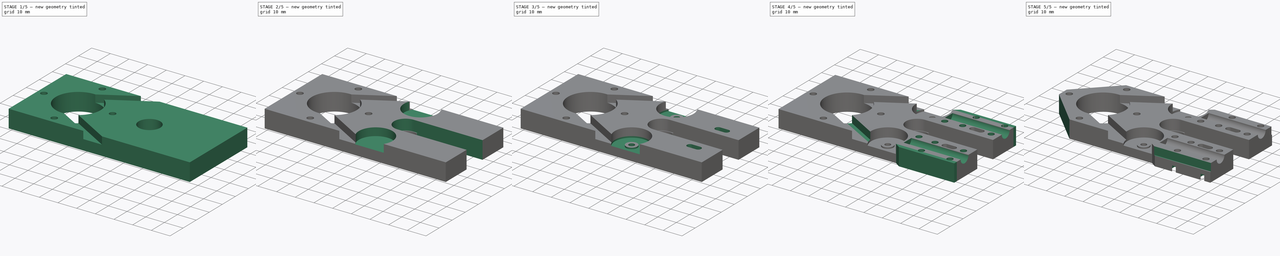
[diagram: build sequence overview — one tinted view per stage of 5, left to right]
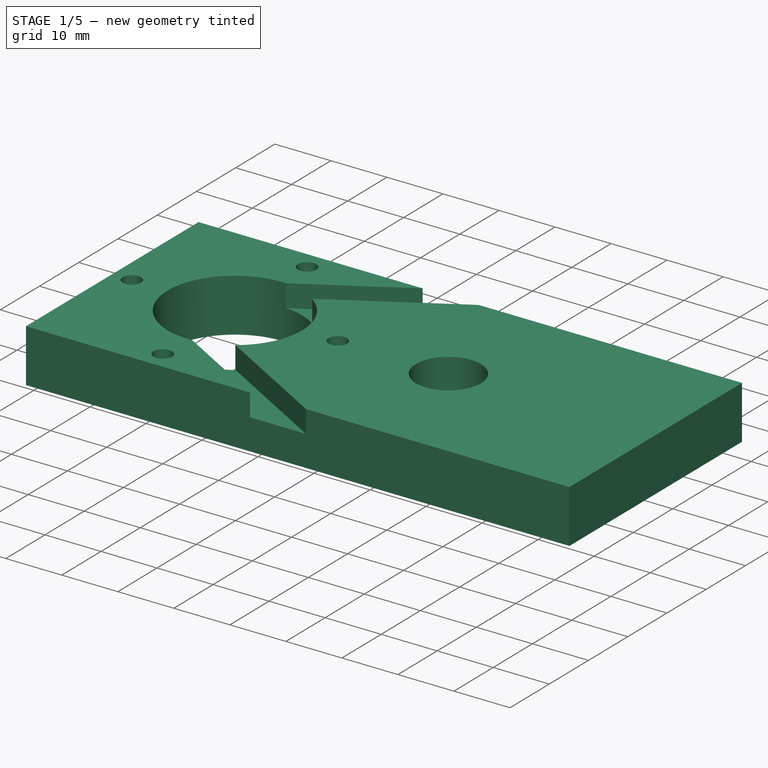
[diagram: stage 1 of 5 — iso view after this stage's code; geometry added in this stage tinted green]
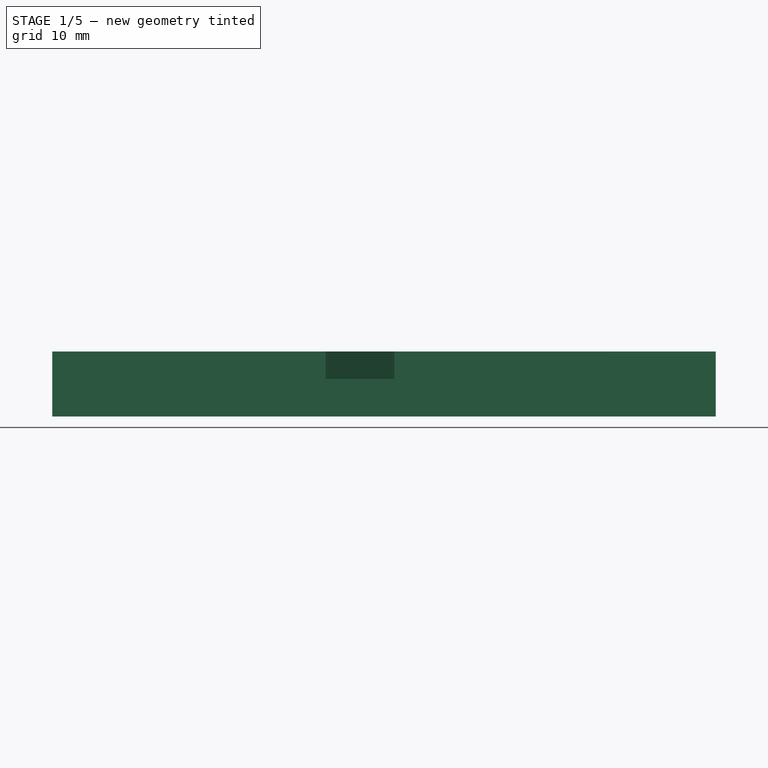
[diagram: stage 1 of 5 — front view after this stage's code; geometry added in this stage tinted green]
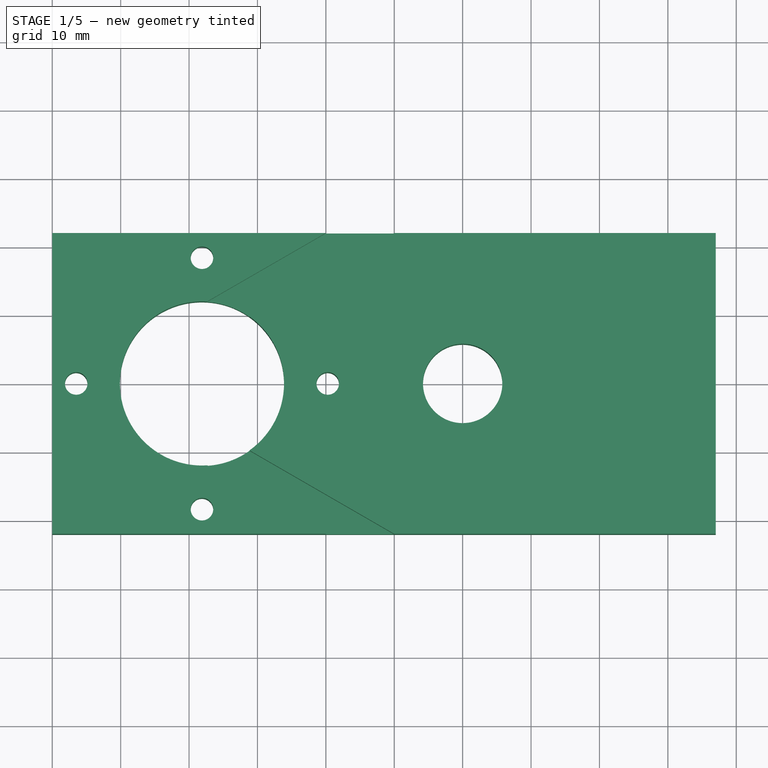
[diagram: stage 1 of 5 — top view after this stage's code; geometry added in this stage tinted green]
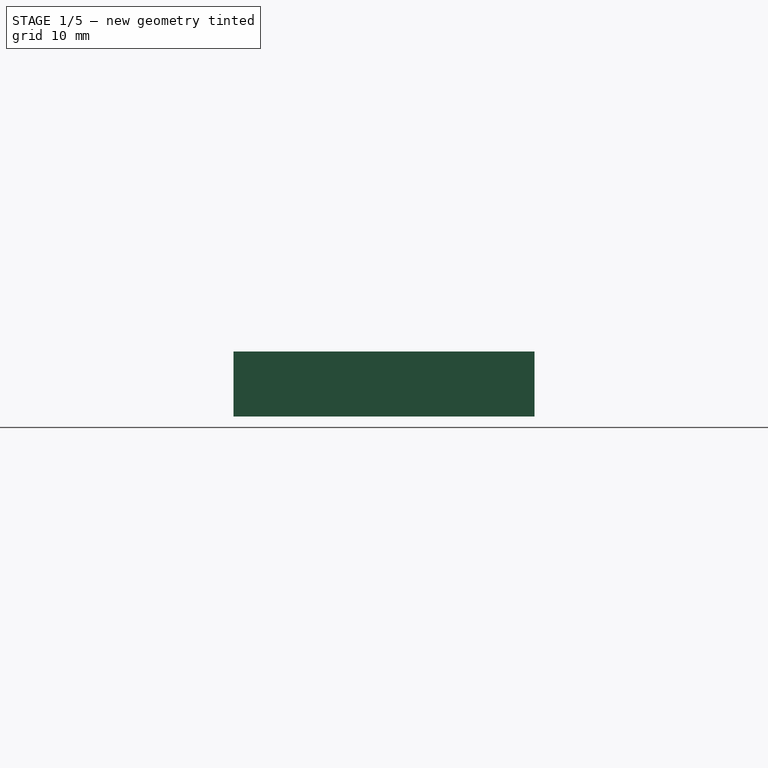
[diagram: stage 1 of 5 — right view after this stage's code; geometry added in this stage tinted green]
FCSTD DOCUMENT  (FreeCAD 0.18R15441 (Git))
Label: LeftXEndHalf_Bottom
License: All rights reserved
LicenseURL: http://en.wikipedia.org/wiki/All_rights_reserved
objects: Sketcher::SketchObject×18, PartDesign::Pocket×16, PartDesign::Plane×3, PartDesign::Pad×2, PartDesign::Chamfer×1, PartDesign::Body×1, App::Part×1, Part::FeaturePython×1
note: 60 computed .brp shape members not serialized (recipe doc carries the construction recipe); baked Part::Feature solids carry a one-line shape summary decoded from their .brp

FEATURE [Sketcher::SketchObject] Sketch  label="BaseSketch"
  MapMode = 5
  Placement = pos=(0,0,0) rot=(0.57735,0.57735,0.57735;2.0944rad)
  Support = -> [YZ_Plane]
  sketch-geometry (5):
    g0: LineSegment StartX=0 StartY=-9.5 StartZ=0 EndX=22 EndY=-9.5 EndZ=0
    g1: LineSegment StartX=22 StartY=-9.5 StartZ=0 EndX=22 EndY=0 EndZ=0
    g2: LineSegment StartX=-22 StartY=0 StartZ=0 EndX=-22 EndY=-9.5 EndZ=0
    g3: LineSegment StartX=-22 StartY=-9.5 StartZ=0 EndX=0 EndY=-9.5 EndZ=0
    g4: LineSegment StartX=-22 StartY=0 StartZ=0 EndX=22 EndY=0 EndZ=0
  constraints (14):
    c: PointOnObject(g0,g-2)
    c: Horizontal(g0)
    c: Coincident(g1,g0)
    c: PointOnObject(g1,g-1)
    c: Vertical(g1)
    c: Vertical(g2)
    c: Coincident(g3,g2)
    c: Horizontal(g3)
    c: Coincident(g0,g3)
    c: Coincident(g4,g2)
    c: Coincident(g4,g1)
    c: Distance(g4) = 44
    c: Distance(g2) = 9.5
    c: Symmetric(g2,g1,g-2)
FEATURE [PartDesign::Pad] Pad  label="BasePad"
  Length = 97
  Length2 = 100
  Placement = pos=(0,0,0) rot=(0.57735,0.57735,0.57735;2.0944rad)
  Profile = -> Sketch
  Type = 0
FEATURE [Sketcher::SketchObject] Sketch001  label="MotorClampingSketch"
  MapMode = 5
  Support = -> [XY_Plane]
  sketch-geometry (10):
    g0: LineSegment [constr] StartX=3.5 StartY=0 StartZ=0 EndX=21.8848 EndY=-18.3848 EndZ=0
    g1: LineSegment [constr] StartX=21.8848 StartY=-18.3848 StartZ=0 EndX=40.2696 EndY=0 EndZ=0
    g2: LineSegment [constr] StartX=40.2696 StartY=0 StartZ=0 EndX=21.8848 EndY=18.3848 EndZ=0
    g3: LineSegment [constr] StartX=21.8848 StartY=18.3848 StartZ=0 EndX=3.5 EndY=0 EndZ=0
    g4: Circle [constr] CenterX=21.8848 CenterY=1.169e-13 CenterZ=0 NormalX=0 NormalY=0 NormalZ=1 AngleXU=0 Radius=18.3848
    g5: Circle CenterX=21.8848 CenterY=18.3848 CenterZ=0 NormalX=0 NormalY=0 NormalZ=1 AngleXU=0 Radius=1.65
    g6: Circle CenterX=40.2696 CenterY=0 CenterZ=0 NormalX=0 NormalY=0 NormalZ=1 AngleXU=0 Radius=1.65
    g7: Circle CenterX=21.8848 CenterY=-18.3848 CenterZ=0 NormalX=0 NormalY=0 NormalZ=1 AngleXU=0 Radius=1.65
    g8: Circle CenterX=3.5 CenterY=0 CenterZ=0 NormalX=0 NormalY=0 NormalZ=1 AngleXU=0 Radius=1.65
    g9: Circle CenterX=21.8848 CenterY=1.169e-13 CenterZ=0 NormalX=0 NormalY=0 NormalZ=1 AngleXU=0 Radius=12
  constraints (25):
    c: Coincident(g0,g1)
    c: Coincident(g1,g2)
    c: Coincident(g2,g3)
    c: Coincident(g3,g0)
    c: Equal(g0,g1)
    c: Equal(g0,g2)
    c: Equal(g0,g3)
    c: PointOnObject(g0,g4)
    c: PointOnObject(g1,g4)
    c: PointOnObject(g2,g4)
    c: PointOnObject(g3,g4)
    c: PointOnObject(g3,g-1)
    c: Distance(g2) = 26
    c: Coincident(g5,g2)
    c: Coincident(g6,g1)
    c: Coincident(g7,g0)
    c: Coincident(g8,g0)
    c: Equal(g5,g6)
    c: Equal(g6,g7)
    c: Equal(g7,g8)
    c: Radius(g5) = 1.65
    c: Coincident(g9,g4)
    c: Radius(g9) = 12
    c: Distance(g-1,g8) = 3.5
    c: PointOnObject(g6,g-1)
FEATURE [PartDesign::Pocket] Pocket  label="MotorClampingPocket"
  BaseFeature = -> Pad
  Length = 5
  Length2 = 100
  Midplane = true
  Placement = pos=(0,0,0) rot=(0.57735,0.57735,0.57735;2.0944rad)
  Profile = -> Sketch001
  Type = 1
FEATURE [Sketcher::SketchObject] Sketch002  label="BeltSketch"
  ExternalGeometry = -> [Sketch001]
  MapMode = 5
  Support = -> [XY_Plane]
  sketch-geometry (10):
    g0: Circle [constr] CenterX=21.8848 CenterY=0 CenterZ=0 NormalX=0 NormalY=0 NormalZ=1 AngleXU=0 Radius=5
    g1: Circle [constr] CenterX=21.8848 CenterY=0 CenterZ=0 NormalX=0 NormalY=0 NormalZ=1 AngleXU=0 Radius=10
    g2: LineSegment StartX=19.3848 StartY=4.33014 StartZ=0 EndX=105.987 EndY=54.3301 EndZ=0
    g3: LineSegment StartX=16.8848 StartY=8.66027 StartZ=0 EndX=103.487 EndY=58.6603 EndZ=0
    g4: LineSegment StartX=19.3848 StartY=-4.33014 StartZ=0 EndX=105.987 EndY=-54.3301 EndZ=0
    g5: LineSegment StartX=16.8848 StartY=-8.66027 StartZ=0 EndX=103.487 EndY=-58.6603 EndZ=0
    g6: LineSegment StartX=16.8848 StartY=8.66027 StartZ=0 EndX=19.3848 EndY=4.33014 EndZ=0
    g7: LineSegment StartX=16.8848 StartY=-8.66027 StartZ=0 EndX=19.3848 EndY=-4.33014 EndZ=0
    g8: LineSegment StartX=103.487 StartY=58.6603 StartZ=0 EndX=105.987 EndY=54.3301 EndZ=0
    g9: LineSegment StartX=103.487 StartY=-58.6603 StartZ=0 EndX=105.987 EndY=-54.3301 EndZ=0
  constraints (24):
    c: Coincident(g0,g-3)
    c: Coincident(g1,g0)
    c: Radius(g0) = 5
    c: Radius(g1) = 10
    c: Symmetric(g2,g4,g-1)
    c: Symmetric(g3,g5,g-1)
    c: Coincident(g8,g2)
    c: Coincident(g8,g3)
    c: Coincident(g9,g4)
    c: Coincident(g9,g5)
    c: Coincident(g7,g5)
    c: Coincident(g7,g4)
    c: Coincident(g6,g3)
    c: Coincident(g6,g2)
    c: Symmetric(g2,g4,g-1)
    c: Symmetric(g3,g5,g-1)
    c: PointOnObject(g2,g0)
    c: Tangent(g0,g2)
    c: Perpendicular(g6,g2)
    c: Perpendicular(g3,g6)
    c: PointOnObject(g3,g1)
    c: Equal(g3,g2)
    c: Angle(g2,g-1) = 2.61799
    c: Distance(g3) = 100
FEATURE [PartDesign::Pocket] Pocket001  label="BeltPocket"
  BaseFeature = -> Pocket
  Length = 8
  Length2 = 4
  Midplane = true
  Placement = pos=(0,0,0) rot=(0.57735,0.57735,0.57735;2.0944rad)
  Profile = -> Sketch002
  Reversed = true
  Type = 0
FEATURE [Sketcher::SketchObject] Sketch005  label="BearingClipLedgeSketch"
  MapMode = 5
  Support = -> [XY_Plane]
  sketch-geometry (1):
    g0: Circle CenterX=60 CenterY=0 CenterZ=0 NormalX=0 NormalY=0 NormalZ=1 AngleXU=0 Radius=5.8
  constraints (3):
    c: Radius(g0) = 5.8
    c: Distance(g-1,g0) = 60
    c: PointOnObject(g0,g-1)
FEATURE [PartDesign::Pocket] Pocket002  label="BearingClipLedgePocket"
  BaseFeature = -> Pocket001
  Length = 5
  Length2 = 100
  Midplane = true
  Placement = pos=(0,0,0) rot=(0.57735,0.57735,0.57735;2.0944rad)
  Profile = -> Sketch005
  Type = 1
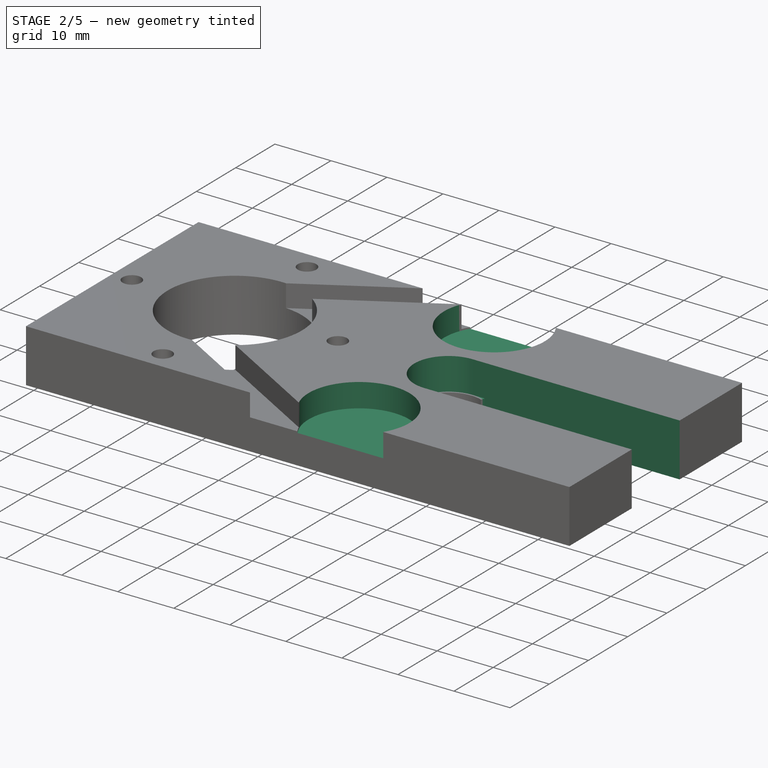
[diagram: stage 2 of 5 — iso view after this stage's code; geometry added in this stage tinted green]
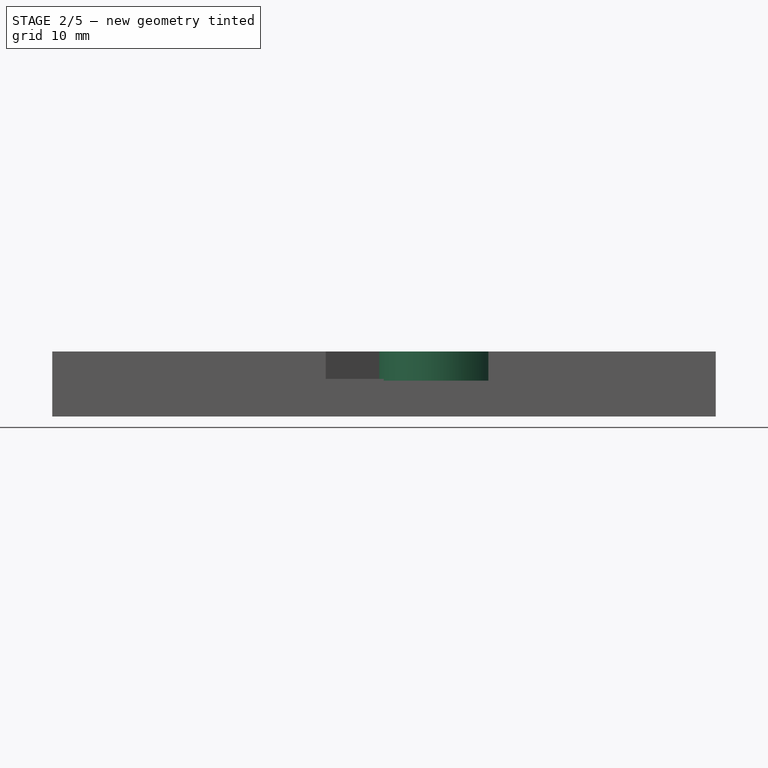
[diagram: stage 2 of 5 — front view after this stage's code; geometry added in this stage tinted green]
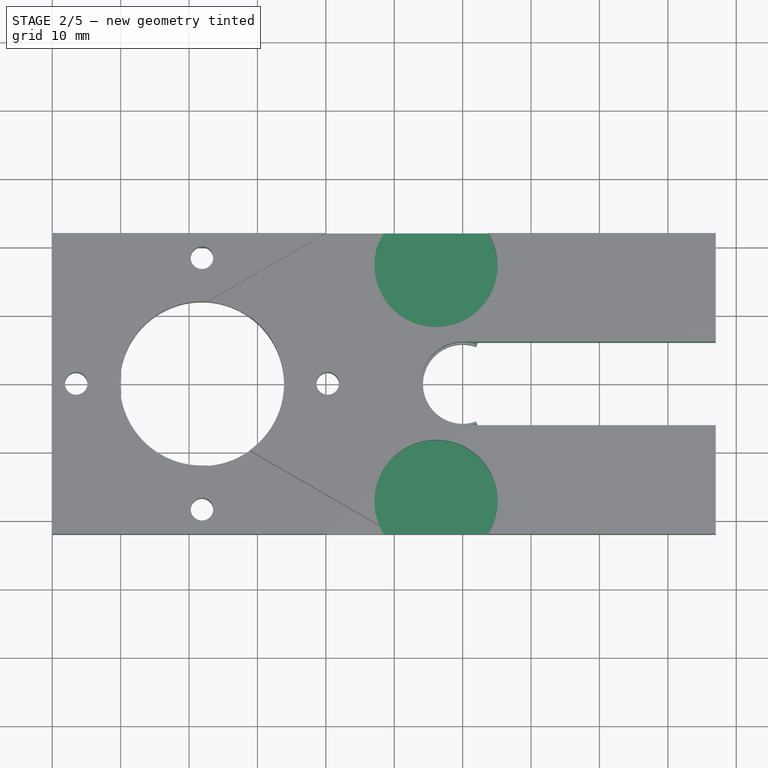
[diagram: stage 2 of 5 — top view after this stage's code; geometry added in this stage tinted green]
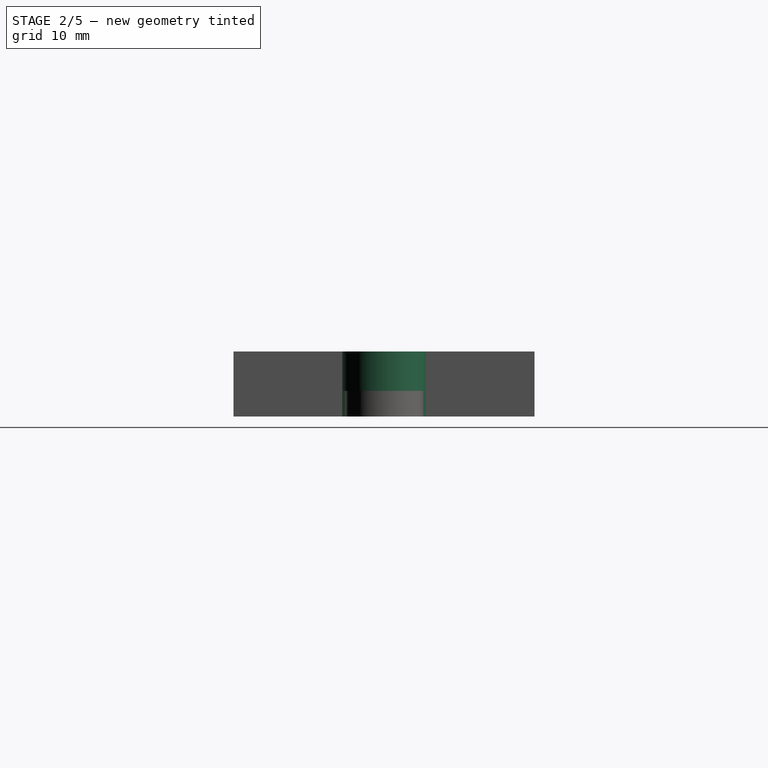
[diagram: stage 2 of 5 — right view after this stage's code; geometry added in this stage tinted green]
FEATURE [Sketcher::SketchObject] Sketch006  label="BearingClipWallSketch"
  ExternalGeometry = -> [Sketch005]
  MapMode = 5
  Support = -> [XY_Plane]
  sketch-geometry (1):
    g0: Circle CenterX=60 CenterY=0 CenterZ=0 NormalX=0 NormalY=0 NormalZ=1 AngleXU=0 Radius=6.1
  constraints (2):
    c: Radius(g0) = 6.1
    c: Coincident(g0,g-3)
FEATURE [PartDesign::Pocket] Pocket003  label="BearingClipWallPocket"
  BaseFeature = -> Pocket002
  Length = 5.75
  Length2 = 6.5
  Placement = pos=(0,0,0) rot=(0.57735,0.57735,0.57735;2.0944rad)
  Profile = -> Sketch006
  Type = 0
FEATURE [Sketcher::SketchObject] Sketch007  label="BearingClipCut1Sketch"
  ExternalGeometry = -> [Sketch006]
  MapMode = 5
  Support = -> [XY_Plane]
  sketch-geometry (10):
    g0: LineSegment StartX=60 StartY=0 StartZ=0 EndX=62.0863 EndY=5.73212 EndZ=0
    g1: LineSegment StartX=60 StartY=0 StartZ=0 EndX=62.0863 EndY=-5.73212 EndZ=0
    g2: LineSegment StartX=62.2202 StartY=-6.1 StartZ=0 EndX=162.22 EndY=-6.1 EndZ=0
    g3: LineSegment StartX=62.2202 StartY=6.1 StartZ=0 EndX=162.22 EndY=6.1 EndZ=0
    g4: LineSegment StartX=162.22 StartY=6.1 StartZ=0 EndX=162.22 EndY=-6.1 EndZ=0
    g5: LineSegment [constr] StartX=60 StartY=6.1 StartZ=0 EndX=60 EndY=-6.1 EndZ=0
    g6: LineSegment [constr] StartX=60 StartY=6.1 StartZ=0 EndX=62.2202 EndY=6.1 EndZ=0
    g7: LineSegment [constr] StartX=60 StartY=-6.1 StartZ=0 EndX=62.2202 EndY=-6.1 EndZ=0
    g8: LineSegment StartX=62.0863 StartY=5.73212 StartZ=0 EndX=62.2202 EndY=6.1 EndZ=0
    g9: LineSegment StartX=62.0863 StartY=-5.73212 StartZ=0 EndX=62.2202 EndY=-6.1 EndZ=0
  constraints (26):
    c: Coincident(g1,g0)
    c: Horizontal(g2)
    c: Horizontal(g3)
    c: Coincident(g4,g3)
    c: Coincident(g4,g2)
    c: Vertical(g4)
    c: Distance(g3) = 100
    c: PointOnObject(g0,g-3)
    c: Coincident(g0,g-3)
    c: Symmetric(g1,g0,g-1)
    c: Angle(g0,g-1) = 1.91986
    c: PointOnObject(g5,g-3)
    c: PointOnObject(g5,g-3)
    c: Vertical(g5)
    c: PointOnObject(g0,g5)
    c: Coincident(g6,g5)
    c: Horizontal(g6)
    c: Coincident(g7,g5)
    c: Symmetric(g7,g6,g-1)
    c: Coincident(g8,g0)
    c: Coincident(g8,g6)
    c: Coincident(g9,g1)
    c: Coincident(g9,g7)
    c: Parallel(g8,g0)
    c: Coincident(g3,g8)
    c: Coincident(g2,g9)
FEATURE [PartDesign::Pocket] Pocket004  label="BearingClipCut1Pocket"
  BaseFeature = -> Pocket003
  Length = 5
  Length2 = 100
  Midplane = true
  Placement = pos=(0,0,0) rot=(0.57735,0.57735,0.57735;2.0944rad)
  Profile = -> Sketch007
  Type = 1
FEATURE [Sketcher::SketchObject] Sketch008  label="BearingClipCut2Sketch"
  ExternalGeometry = -> [Sketch006]
  MapMode = 5
  Support = -> [XY_Plane]
  sketch-geometry (4):
    g0: LineSegment StartX=60 StartY=6.1 StartZ=0 EndX=60 EndY=-6.1 EndZ=0
    g1: LineSegment StartX=60 StartY=6.1 StartZ=0 EndX=64 EndY=6.1 EndZ=0
    g2: LineSegment StartX=64 StartY=6.1 StartZ=0 EndX=64 EndY=-6.1 EndZ=0
    g3: LineSegment StartX=64 StartY=-6.1 StartZ=0 EndX=60 EndY=-6.1 EndZ=0
  constraints (12):
    c: PointOnObject(g0,g-3)
    c: PointOnObject(g0,g-3)
    c: Vertical(g0)
    c: PointOnObject(g-3,g0)
    c: Coincident(g1,g0)
    c: Horizontal(g1)
    c: Vertical(g2)
    c: Coincident(g3,g2)
    c: Coincident(g3,g0)
    c: Horizontal(g3)
    c: Distance(g1) = 4
    c: Coincident(g2,g1)
FEATURE [PartDesign::Pocket] Pocket005  label="BearingClipCut2Pocket"
  BaseFeature = -> Pocket004
  Length = 5.75
  Length2 = 6.5
  Placement = pos=(0,0,0) rot=(0.57735,0.57735,0.57735;2.0944rad)
  Profile = -> Sketch008
  Type = 0
FEATURE [Sketcher::SketchObject] Sketch009  label="BeltBearingsSketch"
  ExternalGeometry = -> [Sketch002,Sketch]
  MapMode = 5
  Support = -> [XY_Plane]
  sketch-geometry (8):
    g0: LineSegment [constr] StartX=-2.4816e-12 StartY=-22 StartZ=0 EndX=49.9899 EndY=-22 EndZ=0
    g1: Circle [constr] CenterX=56.1136 CenterY=-17.25 CenterZ=0 NormalX=0 NormalY=0 NormalZ=1 AngleXU=0 Radius=7.75
    g2: LineSegment [constr] StartX=49.9899 StartY=-22 StartZ=0 EndX=62.2373 EndY=-22 EndZ=0
    g3: LineSegment [constr] StartX=56.1136 StartY=-17.25 StartZ=0 EndX=56.1136 EndY=-25 EndZ=0
    g4: Circle CenterX=56.1136 CenterY=-17.25 CenterZ=0 NormalX=0 NormalY=0 NormalZ=1 AngleXU=0 Radius=9.00524
    g5: LineSegment [constr] StartX=62.2373 StartY=-22 StartZ=0 EndX=63.7642 EndY=-22 EndZ=0
    g6: LineSegment [constr] StartX=56.1136 StartY=-17.25 StartZ=0 EndX=47.8136 EndY=-20.7435 EndZ=0
    g7: Circle CenterX=56.1136 CenterY=17.25 CenterZ=0 NormalX=0 NormalY=0 NormalZ=1 AngleXU=0 Radius=9.00524
  constraints (22):
    c: Horizontal(g0)
    c: PointOnObject(g0,g1)
    c: Coincident(g2,g0)
    c: Horizontal(g2)
    c: PointOnObject(g2,g1)
    c: Coincident(g3,g1)
    c: PointOnObject(g3,g1)
    c: Vertical(g3)
    c: Distance(g3,g2) = 3
    c: Radius(g1) = 7.75
    c: Coincident(g4,g1)
    c: Coincident(g5,g2)
    c: Horizontal(g5)
    c: Coincident(g6,g4)
    c: PointOnObject(g6,g4)
    c: PointOnObject(g5,g4)
    c: Distance(g6,g5) = 16
    c: Symmetric(g4,g7,g-1)
    c: Equal(g7,g4)
    c: Coincident(g0,g-4)
    c: PointOnObject(g6,g-3)
    c: PointOnObject(g0,g-3)
FEATURE [PartDesign::Pocket] Pocket006  label="BeltBearingsPocket"
  BaseFeature = -> Pocket005
  Length = 8.5
  Length2 = 100
  Midplane = true
  Placement = pos=(0,0,0) rot=(0.57735,0.57735,0.57735;2.0944rad)
  Profile = -> Sketch009
  Type = 0
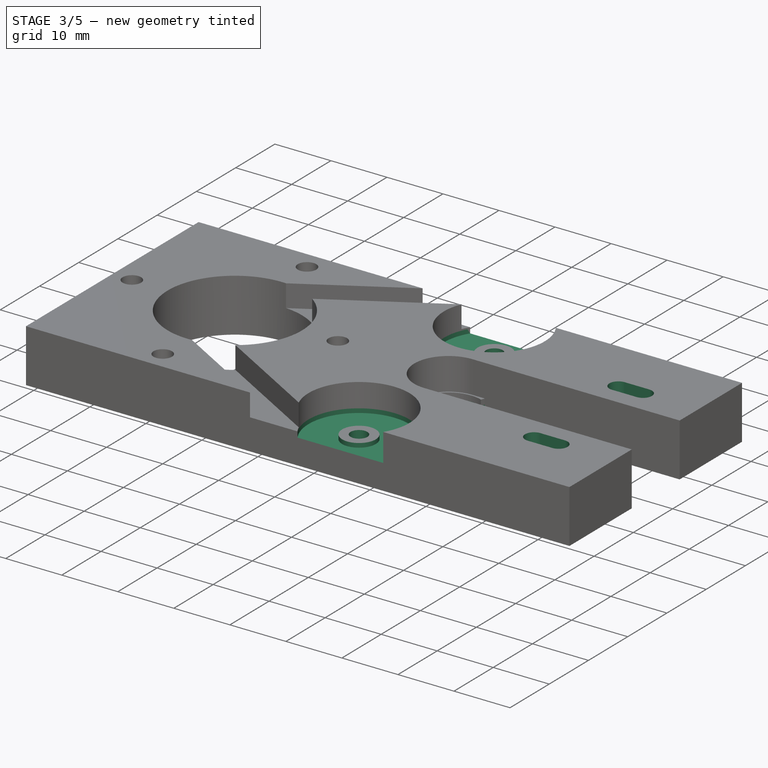
[diagram: stage 3 of 5 — iso view after this stage's code; geometry added in this stage tinted green]
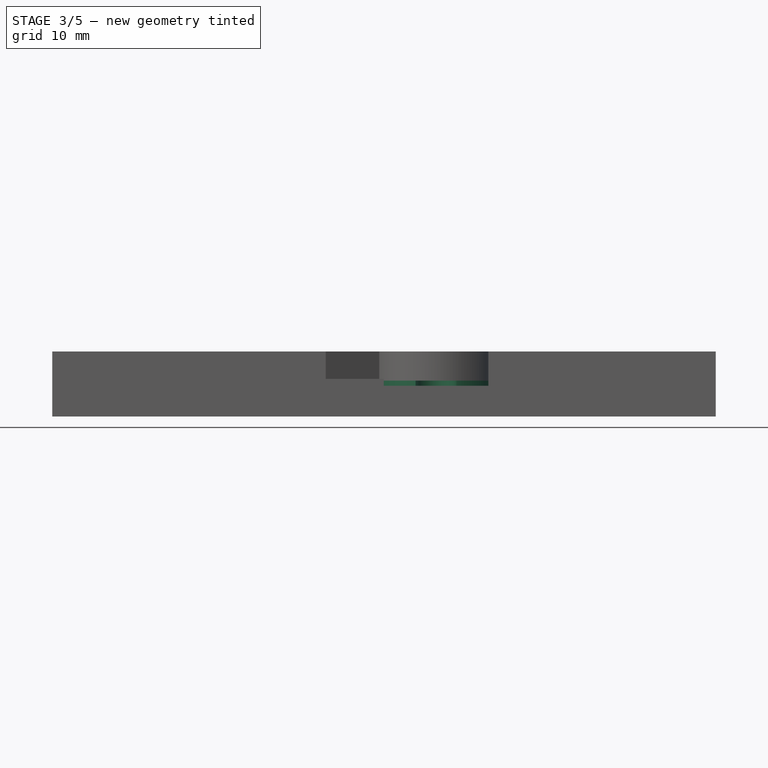
[diagram: stage 3 of 5 — front view after this stage's code; geometry added in this stage tinted green]
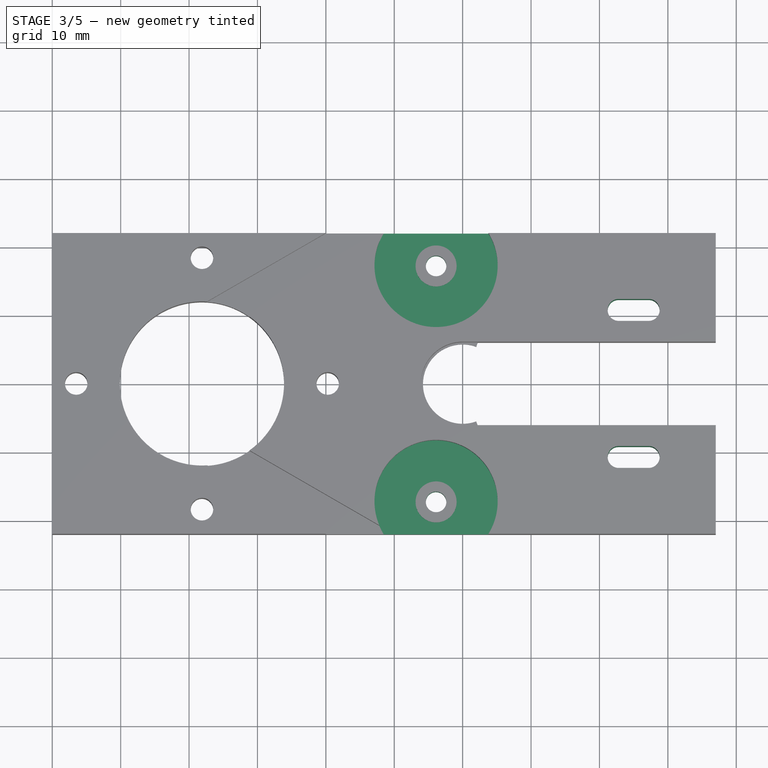
[diagram: stage 3 of 5 — top view after this stage's code; geometry added in this stage tinted green]
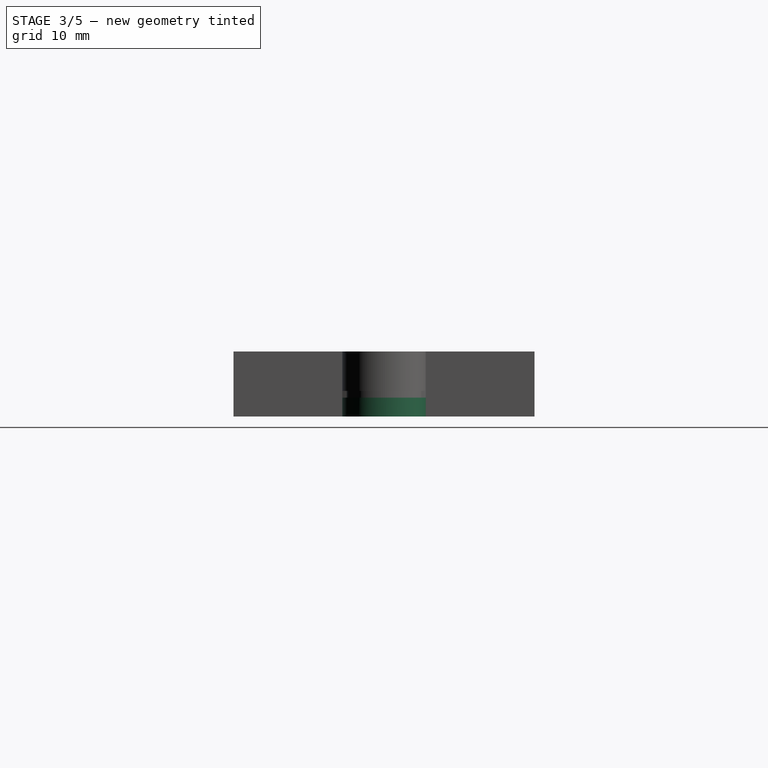
[diagram: stage 3 of 5 — right view after this stage's code; geometry added in this stage tinted green]
FEATURE [Sketcher::SketchObject] Sketch010  label="BeltBearingsClampSketch"
  ExternalGeometry = -> [Sketch009]
  MapMode = 5
  Support = -> [XY_Plane]
  sketch-geometry (4):
    g0: Circle CenterX=56.1136 CenterY=-17.25 CenterZ=0 NormalX=0 NormalY=0 NormalZ=1 AngleXU=0 Radius=9.00524
    g1: Circle CenterX=56.1136 CenterY=17.25 CenterZ=0 NormalX=0 NormalY=0 NormalZ=1 AngleXU=0 Radius=9.00524
    g2: Circle CenterX=56.1136 CenterY=-17.25 CenterZ=0 NormalX=0 NormalY=0 NormalZ=1 AngleXU=0 Radius=3
    g3: Circle CenterX=56.1136 CenterY=17.25 CenterZ=0 NormalX=0 NormalY=0 NormalZ=1 AngleXU=0 Radius=3
  constraints (8):
    c: Coincident(g0,g-3)
    c: Symmetric(g0,g1,g-1)
    c: Equal(g0,g1)
    c: Equal(g0,g-3)
    c: Coincident(g2,g0)
    c: Coincident(g3,g1)
    c: Equal(g3,g2)
    c: Radius(g2) = 3
FEATURE [PartDesign::Pocket] Pocket007  label="BeltBearingsClampPocket"
  BaseFeature = -> Pocket006
  Length = 10
  Length2 = 100
  Midplane = true
  Placement = pos=(0,0,0) rot=(0.57735,0.57735,0.57735;2.0944rad)
  Profile = -> Sketch010
  Type = 0
FEATURE [Sketcher::SketchObject] Sketch011  label="BeltBearingsScrewsSketch"
  ExternalGeometry = -> [Sketch009]
  MapMode = 5
  Support = -> [XY_Plane]
  sketch-geometry (2):
    g0: Circle CenterX=56.1136 CenterY=17.25 CenterZ=0 NormalX=0 NormalY=0 NormalZ=1 AngleXU=0 Radius=1.5
    g1: Circle CenterX=56.1136 CenterY=-17.25 CenterZ=0 NormalX=0 NormalY=0 NormalZ=1 AngleXU=0 Radius=1.5
  constraints (4):
    c: Coincident(g1,g-3)
    c: Symmetric(g1,g0,g-1)
    c: Radius(g1) = 1.5
    c: Equal(g1,g0)
FEATURE [PartDesign::Pocket] Pocket008  label="BeltBearingsScrewsPocket"
  BaseFeature = -> Pocket007
  Length = 5
  Length2 = 100
  Midplane = true
  Placement = pos=(0,0,0) rot=(0.57735,0.57735,0.57735;2.0944rad)
  Profile = -> Sketch011
  Type = 1
FEATURE [Sketcher::SketchObject] Sketch012  label="FeedingShaftClipScrewsSketch"
  ExternalGeometry = -> [Sketch005]
  MapMode = 5
  Support = -> [XY_Plane]
  sketch-geometry (12):
    g0: LineSegment [constr] StartX=60 StartY=10.75 StartZ=0 EndX=85 EndY=10.75 EndZ=0
    g1: LineSegment [constr] StartX=60 StartY=10.75 StartZ=0 EndX=60 EndY=0 EndZ=0
    g2: ArcOfCircle CenterX=82.8 CenterY=10.75 CenterZ=0 NormalX=0 NormalY=0 NormalZ=1 AngleXU=0 Radius=1.6 StartAngle=1.5708 EndAngle=4.71239
    g3: ArcOfCircle CenterX=87.2 CenterY=10.75 CenterZ=0 NormalX=0 NormalY=0 NormalZ=1 AngleXU=0 Radius=1.6 StartAngle=4.71239 EndAngle=7.85398
    g4: LineSegment StartX=82.8 StartY=9.15 StartZ=0 EndX=87.2 EndY=9.15 EndZ=0
    g5: LineSegment StartX=82.8 StartY=12.35 StartZ=0 EndX=87.2 EndY=12.35 EndZ=0
    g6: LineSegment [constr] StartX=82.8 StartY=10.75 StartZ=0 EndX=85 EndY=10.75 EndZ=0
    g7: LineSegment [constr] StartX=85 StartY=10.75 StartZ=0 EndX=87.2 EndY=10.75 EndZ=0
    g8: ArcOfCircle CenterX=82.8 CenterY=-10.75 CenterZ=0 NormalX=0 NormalY=0 NormalZ=1 AngleXU=0 Radius=1.6 StartAngle=1.5708 EndAngle=4.71239
    g9: ArcOfCircle CenterX=87.2 CenterY=-10.75 CenterZ=0 NormalX=0 NormalY=0 NormalZ=1 AngleXU=0 Radius=1.6 StartAngle=4.71239 EndAngle=7.85398
    g10: LineSegment StartX=82.8 StartY=-12.35 StartZ=0 EndX=87.2 EndY=-12.35 EndZ=0
    g11: LineSegment StartX=82.8 StartY=-9.15 StartZ=0 EndX=87.2 EndY=-9.15 EndZ=0
  constraints (28):
    c: Horizontal(g0)
    c: Distance(g0) = 25
    c: Coincident(g1,g0)
    c: Vertical(g1)
    c: Tangent(g2,g5) = 1.5708
    c: Tangent(g2,g4) = -1.5708
    c: Tangent(g4,g3) = -1.5708
    c: Tangent(g5,g3) = 1.5708
    c: Horizontal(g4)
    c: Equal(g2,g3)
    c: PointOnObject(g2,g0)
    c: Coincident(g6,g2)
    c: Coincident(g6,g0)
    c: Coincident(g7,g0)
    c: Coincident(g7,g3)
    c: Equal(g6,g7)
    c: Distance(g5) = 4.4
    c: Radius(g3) = 1.6
    c: Tangent(g8,g11) = 1.5708
    c: Tangent(g8,g10) = -1.5708
    c: Tangent(g10,g9) = -1.5708
    c: Tangent(g11,g9) = 1.5708
    c: Horizontal(g10)
    c: Symmetric(g8,g2,g-1)
    c: Symmetric(g3,g9,g-1)
    c: Equal(g9,g3)
    c: Coincident(g1,g-3)
    c: Distance(g1) = 10.75
FEATURE [PartDesign::Pocket] Pocket009  label="FeedingShaftClipScrewsPocket"
  BaseFeature = -> Pocket008
  Length = 5
  Length2 = 100
  Midplane = true
  Placement = pos=(0,0,0) rot=(0.57735,0.57735,0.57735;2.0944rad)
  Profile = -> Sketch012
  Type = 1
FEATURE [PartDesign::Plane] DatumPlane  label="BearingNotchPlane"
  AttachmentOffset = pos=(0,0,-6.75) rot=(0,0,1;0rad)
  Length = 120.723
  MapMode = 5
  Placement = pos=(0,0,-6.75) rot=(0,0,1;0rad)
  ResizeMode = 0
  Support = -> [XY_Plane]
  Width = 57.723
FEATURE [Sketcher::SketchObject] Sketch013  label="BearingNotchSketch"
  ExternalGeometry = -> [Sketch006]
  MapMode = 5
  Placement = pos=(0,0,-6.75) rot=(0,0,1;0rad)
  Support = -> [DatumPlane]
  sketch-geometry (4):
    g0: ArcOfCircle CenterX=60 CenterY=0 CenterZ=0 NormalX=0 NormalY=0 NormalZ=1 AngleXU=0 Radius=6.1 StartAngle=1.5708 EndAngle=4.71239
    g1: LineSegment StartX=60 StartY=6.1 StartZ=0 EndX=85 EndY=6.1 EndZ=0
    g2: LineSegment StartX=60 StartY=-6.1 StartZ=0 EndX=85 EndY=-6.1 EndZ=0
    g3: LineSegment StartX=85 StartY=-6.1 StartZ=0 EndX=85 EndY=6.1 EndZ=0
  constraints (12):
    c: Coincident(g0,g-3)
    c: PointOnObject(g0,g-3)
    c: Symmetric(g0,g0,g-1)
    c: Angle(g0) = 3.14159
    c: Coincident(g1,g0)
    c: Horizontal(g1)
    c: Coincident(g2,g0)
    c: Horizontal(g2)
    c: Coincident(g3,g2)
    c: Coincident(g3,g1)
    c: Vertical(g3)
    c: Distance(g1) = 25
FEATURE [PartDesign::Pocket] Pocket010  label="BearingNotchPocket"
  BaseFeature = -> Pocket009
  Length = 5
  Length2 = 100
  Placement = pos=(0,0,0) rot=(0.57735,0.57735,0.57735;2.0944rad)
  Profile = -> Sketch013
  Type = 1
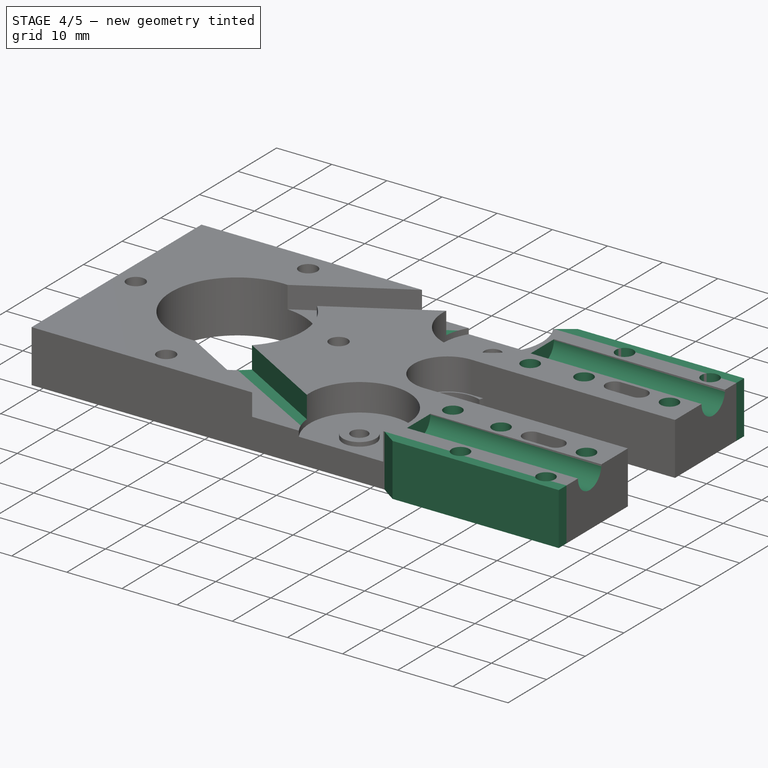
[diagram: stage 4 of 5 — iso view after this stage's code; geometry added in this stage tinted green]
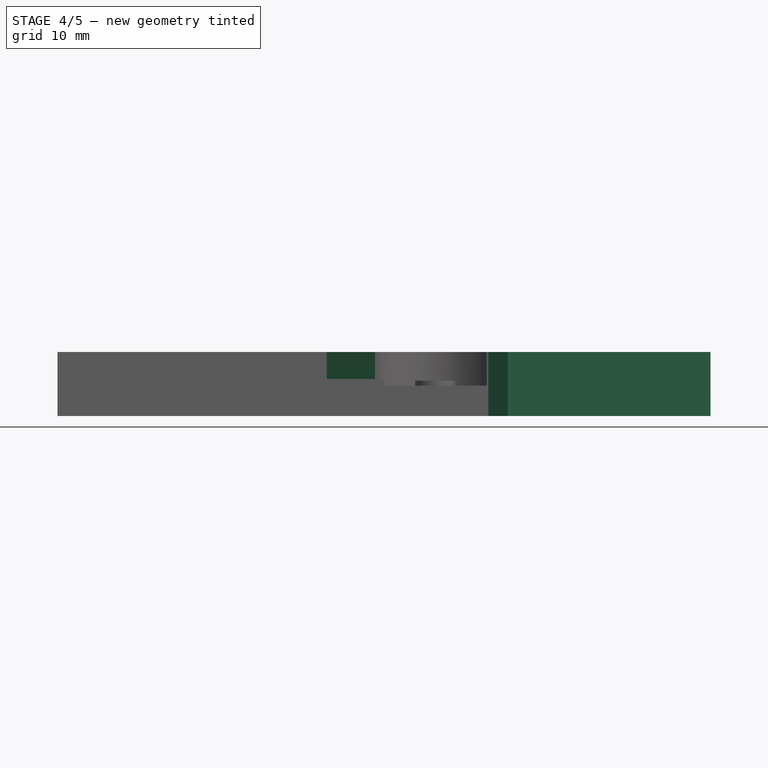
[diagram: stage 4 of 5 — front view after this stage's code; geometry added in this stage tinted green]
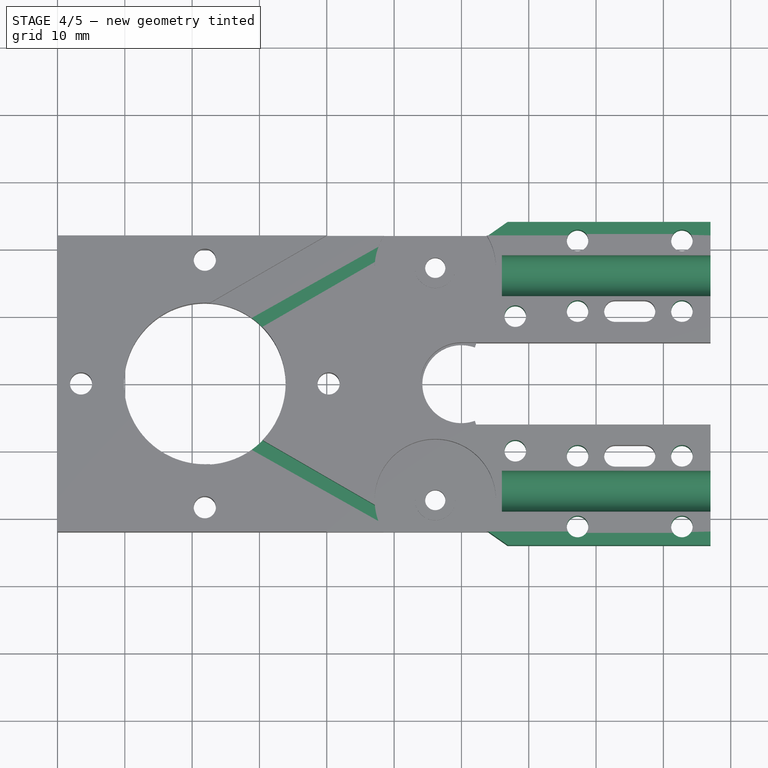
[diagram: stage 4 of 5 — top view after this stage's code; geometry added in this stage tinted green]
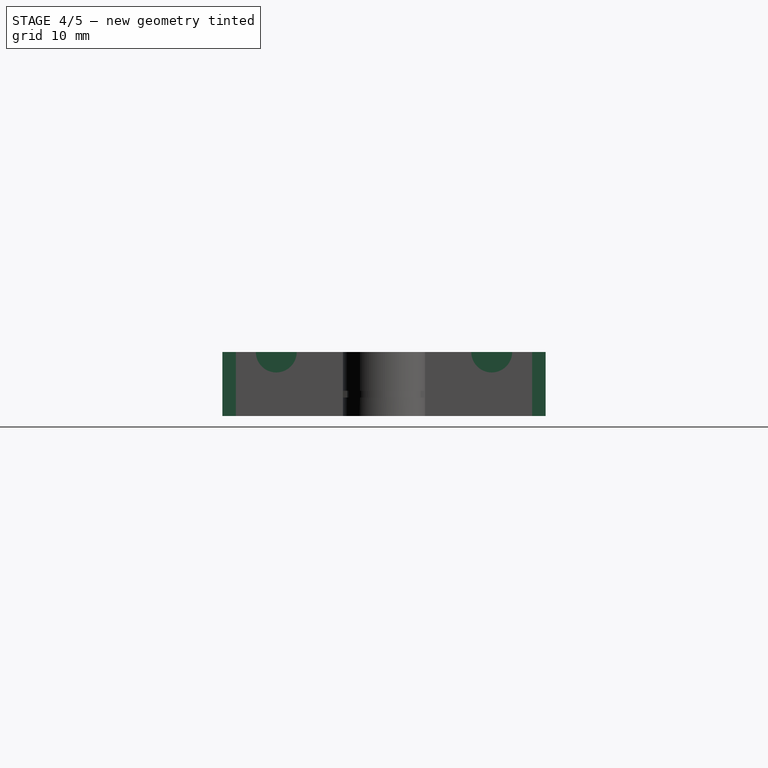
[diagram: stage 4 of 5 — right view after this stage's code; geometry added in this stage tinted green]
FEATURE [PartDesign::Plane] DatumPlane001  label="RailsClipPlane"
  AttachmentOffset = pos=(0,0,66) rot=(0,0,1;0rad)
  Length = 49.933
  MapMode = 5
  Placement = pos=(66,-7.452e-12,7.452e-12) rot=(0.57735,0.57735,0.57735;2.0944rad)
  ResizeMode = 0
  Support = -> [YZ_Plane]
  Width = 25.933
FEATURE [Sketcher::SketchObject] Sketch014  label="RailsClipSketch"
  ExternalGeometry = -> [Sketch]
  MapMode = 5
  Placement = pos=(66,-7.452e-12,7.452e-12) rot=(0.57735,0.57735,0.57735;2.0944rad)
  Support = -> [DatumPlane001]
  sketch-geometry (2):
    g0: Circle CenterX=-16 CenterY=0 CenterZ=0 NormalX=0 NormalY=0 NormalZ=1 AngleXU=0 Radius=3.035
    g1: Circle CenterX=16 CenterY=0 CenterZ=0 NormalX=0 NormalY=0 NormalZ=1 AngleXU=0 Radius=3.035
  constraints (5):
    c: PointOnObject(g0,g-1)
    c: Distance(g-3,g0) = 6
    c: Symmetric(g0,g1,g-2)
    c: Equal(g0,g1)
    c: Radius(g0) = 3.035
FEATURE [PartDesign::Pocket] Pocket011  label="RailClipPocket"
  BaseFeature = -> Pocket010
  Length = 5
  Length2 = 100
  Placement = pos=(0,0,0) rot=(0.57735,0.57735,0.57735;2.0944rad)
  Profile = -> Sketch014
  Reversed = true
  Type = 1
FEATURE [Sketcher::SketchObject] Sketch015  label="BeltExtraNotchSketch"
  ExternalGeometry = -> [Sketch002]
  MapMode = 5
  Support = -> [XY_Plane]
  sketch-geometry (8):
    g0: LineSegment StartX=19.3848 StartY=4.33014 StartZ=0 EndX=20.3848 EndY=2.59809 EndZ=0
    g1: LineSegment StartX=20.3848 StartY=2.59809 StartZ=0 EndX=106.987 EndY=52.5981 EndZ=0
    g2: LineSegment StartX=106.987 StartY=52.5981 StartZ=0 EndX=105.987 EndY=54.3301 EndZ=0
    g3: LineSegment StartX=19.3848 StartY=-4.33014 StartZ=0 EndX=20.3848 EndY=-2.59809 EndZ=0
    g4: LineSegment StartX=20.3848 StartY=-2.59809 StartZ=0 EndX=106.987 EndY=-52.5981 EndZ=0
    g5: LineSegment StartX=106.987 StartY=-52.5981 StartZ=0 EndX=105.987 EndY=-54.3301 EndZ=0
    g6: LineSegment StartX=19.3848 StartY=-4.33014 StartZ=0 EndX=105.987 EndY=-54.3301 EndZ=0
    g7: LineSegment StartX=19.3848 StartY=4.33014 StartZ=0 EndX=105.987 EndY=54.3301 EndZ=0
  constraints (18):
    c: Coincident(g0,g-4)
    c: Coincident(g1,g0)
    c: Coincident(g2,g1)
    c: Coincident(g2,g-4)
    c: Coincident(g3,g-3)
    c: Coincident(g4,g3)
    c: Coincident(g5,g4)
    c: Coincident(g5,g-3)
    c: Symmetric(g0,g3,g-1)
    c: Symmetric(g4,g1,g-1)
    c: Equal(g2,g0)
    c: Perpendicular(g1,g0)
    c: Perpendicular(g2,g1)
    c: Distance(g3) = 2
    c: Coincident(g6,g3)
    c: Coincident(g6,g5)
    c: Coincident(g7,g0)
    c: Coincident(g7,g2)
FEATURE [PartDesign::Pocket] Pocket012  label="BeltExtraNotchPocket"
  BaseFeature = -> Pocket011
  Length = 4
  Length2 = 100
  Placement = pos=(0,0,0) rot=(0.57735,0.57735,0.57735;2.0944rad)
  Profile = -> Sketch015
  Type = 0
FEATURE [Sketcher::SketchObject] Sketch016  label="ExtraLipsSketch"
  ExternalGeometry = -> [Sketch]
  MapMode = 5
  Support = -> [XY_Plane]
  sketch-geometry (9):
    g0: LineSegment [constr] StartX=-2.4816e-12 StartY=-22 StartZ=0 EndX=64 EndY=-22 EndZ=0
    g1: LineSegment StartX=64 StartY=-22 StartZ=0 EndX=97 EndY=-22 EndZ=0
    g2: LineSegment StartX=66.8563 StartY=-24 StartZ=0 EndX=97 EndY=-24 EndZ=0
    g3: LineSegment StartX=64 StartY=22 StartZ=0 EndX=97 EndY=22 EndZ=0
    g4: LineSegment StartX=97 StartY=22 StartZ=0 EndX=97 EndY=24 EndZ=0
    g5: LineSegment StartX=64 StartY=22 StartZ=0 EndX=66.8563 EndY=24 EndZ=0
    g6: LineSegment StartX=66.8563 StartY=24 StartZ=0 EndX=97 EndY=24 EndZ=0
    g7: LineSegment StartX=66.8563 StartY=-24 StartZ=0 EndX=64 EndY=-22 EndZ=0
    g8: LineSegment StartX=97 StartY=-24 StartZ=0 EndX=97 EndY=-22 EndZ=0
  constraints (24):
    c: Coincident(g0,g-3)
    c: Horizontal(g0)
    c: Coincident(g1,g0)
    c: Horizontal(g1)
    c: Horizontal(g2)
    c: Horizontal(g3)
    c: Coincident(g4,g3)
    c: Coincident(g5,g3)
    c: Coincident(g6,g5)
    c: Coincident(g6,g4)
    c: Horizontal(g6)
    c: Symmetric(g1,g3,g-1)
    c: Symmetric(g2,g5,g-1)
    c: Equal(g2,g6)
    c: Equal(g3,g1)
    c: Distance(g0) = 64
    c: Distance(g1) = 33
    c: Distance(g2,g1) = 2
    c: Coincident(g7,g2)
    c: Coincident(g7,g1)
    c: Coincident(g8,g2)
    c: Coincident(g8,g1)
    c: Vertical(g8)
    c: Angle(g7,g1) = 0.610865
FEATURE [PartDesign::Pad] Pad001  label="ExtraLipsPad"
  BaseFeature = -> Pocket012
  Length = 9.5
  Length2 = 100
  Placement = pos=(0,0,0) rot=(0.57735,0.57735,0.57735;2.0944rad)
  Profile = -> Sketch016
  Reversed = true
  Type = 0
FEATURE [Sketcher::SketchObject] Sketch017  label="ExtraClipHoles"
  ExternalGeometry = -> [Sketch005]
  MapMode = 5
  Support = -> [XY_Plane]
  sketch-geometry (23):
    g0: Circle CenterX=77.25 CenterY=-10.75 CenterZ=0 NormalX=0 NormalY=0 NormalZ=1 AngleXU=0 Radius=1.6
    g1: Circle CenterX=77.25 CenterY=-21.25 CenterZ=0 NormalX=0 NormalY=0 NormalZ=1 AngleXU=0 Radius=1.6
    g2: Circle CenterX=92.75 CenterY=-21.25 CenterZ=0 NormalX=0 NormalY=0 NormalZ=1 AngleXU=0 Radius=1.6
    g3: Circle CenterX=92.75 CenterY=-10.75 CenterZ=0 NormalX=0 NormalY=0 NormalZ=1 AngleXU=0 Radius=1.6
    g4: Circle CenterX=77.25 CenterY=10.75 CenterZ=0 NormalX=0 NormalY=0 NormalZ=1 AngleXU=0 Radius=1.6
    g5: Circle CenterX=92.75 CenterY=10.75 CenterZ=0 NormalX=0 NormalY=0 NormalZ=1 AngleXU=0 Radius=1.6
    g6: Circle CenterX=77.25 CenterY=21.25 CenterZ=0 NormalX=0 NormalY=0 NormalZ=1 AngleXU=0 Radius=1.6
    g7: Circle CenterX=92.75 CenterY=21.25 CenterZ=0 NormalX=0 NormalY=0 NormalZ=1 AngleXU=0 Radius=1.6
    g8: LineSegment [constr] StartX=92.75 StartY=-10.75 StartZ=0 EndX=92.75 EndY=-21.25 EndZ=0
    g9: LineSegment [constr] StartX=92.75 StartY=-21.25 StartZ=0 EndX=77.25 EndY=-21.25 EndZ=0
    g10: LineSegment [constr] StartX=77.25 StartY=-21.25 StartZ=0 EndX=77.25 EndY=-10.75 EndZ=0
    g11: LineSegment [constr] StartX=77.25 StartY=21.25 StartZ=0 EndX=77.25 EndY=10.75 EndZ=0
    g12: LineSegment [constr] StartX=77.25 StartY=10.75 StartZ=0 EndX=92.75 EndY=10.75 EndZ=0
    g13: LineSegment [constr] StartX=92.75 StartY=10.75 StartZ=0 EndX=92.75 EndY=21.25 EndZ=0
    g14: LineSegment [constr] StartX=92.75 StartY=21.25 StartZ=0 EndX=77.25 EndY=21.25 EndZ=0
    g15: LineSegment [constr] StartX=60 StartY=0 StartZ=0 EndX=85 EndY=0 EndZ=0
    g16: LineSegment [constr] StartX=77.25 StartY=-10.75 StartZ=0 EndX=85 EndY=-10.75 EndZ=0
    g17: LineSegment [constr] StartX=85 StartY=-10.75 StartZ=0 EndX=92.75 EndY=-10.75 EndZ=0
    g18: LineSegment [constr] StartX=85 StartY=0 StartZ=0 EndX=85 EndY=-10.75 EndZ=0
    g19: LineSegment [constr] StartX=60 StartY=0 StartZ=0 EndX=60 EndY=-10 EndZ=0
    g20: LineSegment [constr] StartX=60 StartY=-10 StartZ=0 EndX=68 EndY=-10 EndZ=0
    g21: Circle CenterX=68 CenterY=-10 CenterZ=0 NormalX=0 NormalY=0 NormalZ=1 AngleXU=0 Radius=1.6
    g22: Circle CenterX=68 CenterY=10 CenterZ=0 NormalX=0 NormalY=0 NormalZ=1 AngleXU=0 Radius=1.6
  constraints (57):
    c: Coincident(g8,g3)
    c: Coincident(g8,g2)
    c: Coincident(g9,g2)
    c: Coincident(g9,g1)
    c: Horizontal(g9)
    c: Vertical(g8)
    c: Coincident(g10,g1)
    c: Coincident(g10,g0)
    c: Vertical(g10)
    c: Coincident(g11,g6)
    c: Coincident(g11,g4)
    c: Coincident(g12,g4)
    c: Coincident(g12,g5)
    c: Horizontal(g12)
    c: Coincident(g13,g5)
    c: Coincident(g13,g7)
    c: Coincident(g14,g7)
    c: Coincident(g14,g6)
    c: Horizontal(g14)
    c: Vertical(g13)
    c: Vertical(g11)
    c: Equal(g14,g9)
    c: Equal(g10,g11)
    c: Symmetric(g0,g4,g-1)
    c: Coincident(g15,g-3)
    c: PointOnObject(g15,g-1)
    c: Coincident(g16,g0)
    c: Horizontal(g16)
    c: Coincident(g17,g16)
    c: Coincident(g17,g3)
    c: Horizontal(g17)
    c: Equal(g17,g16)
    c: Distance(g15) = 25
    c: Coincident(g18,g15)
    c: Coincident(g18,g16)
    c: Vertical(g18)
    c: Distance(g18) = 10.75
    c: Distance(g17) = 7.75
    c: Equal(g4,g6)
    c: Equal(g6,g7)
    c: Equal(g7,g5)
    c: Equal(g5,g3)
    c: Equal(g3,g2)
    c: Equal(g2,g1)
    c: Equal(g1,g0)
    c: Radius(g0) = 1.6
    c: Distance(g10) = 10.5
    c: Coincident(g19,g15)
    c: Vertical(g19)
    c: Coincident(g20,g19)
    c: Horizontal(g20)
    c: Distance(g19) = 10
    c: Distance(g20) = 8
    c: Coincident(g21,g20)
    c: Symmetric(g22,g21,g-1)
    c: Equal(g22,g21)
    c: Radius(g21) = 1.6
FEATURE [PartDesign::Pocket] Pocket013  label="ExtraClipPocket"
  BaseFeature = -> Pad001
  Length = 5
  Length2 = 100
  Placement = pos=(0,0,0) rot=(0.57735,0.57735,0.57735;2.0944rad)
  Profile = -> Sketch017
  Type = 1
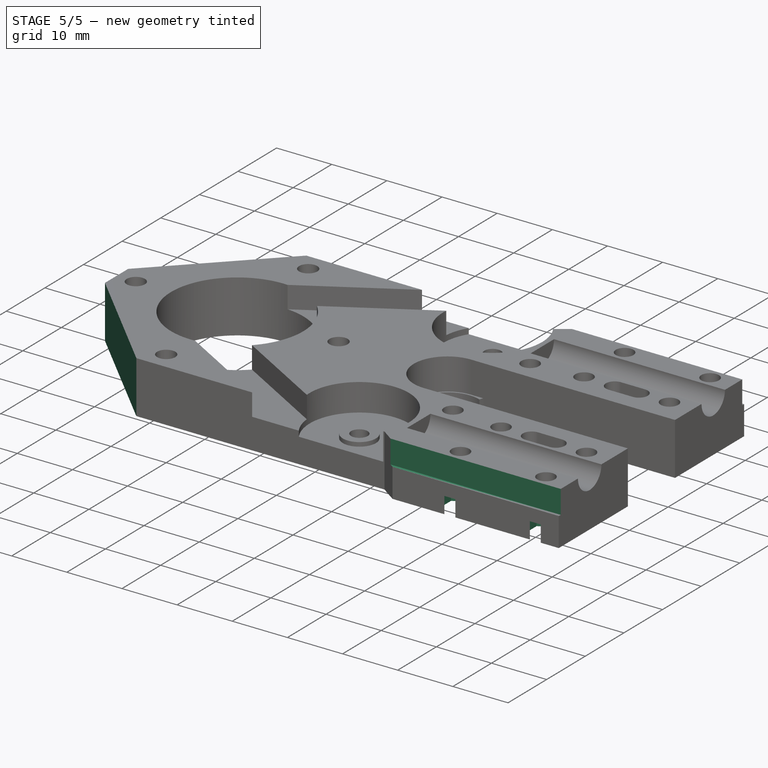
[diagram: stage 5 of 5 — iso view after this stage's code; geometry added in this stage tinted green]
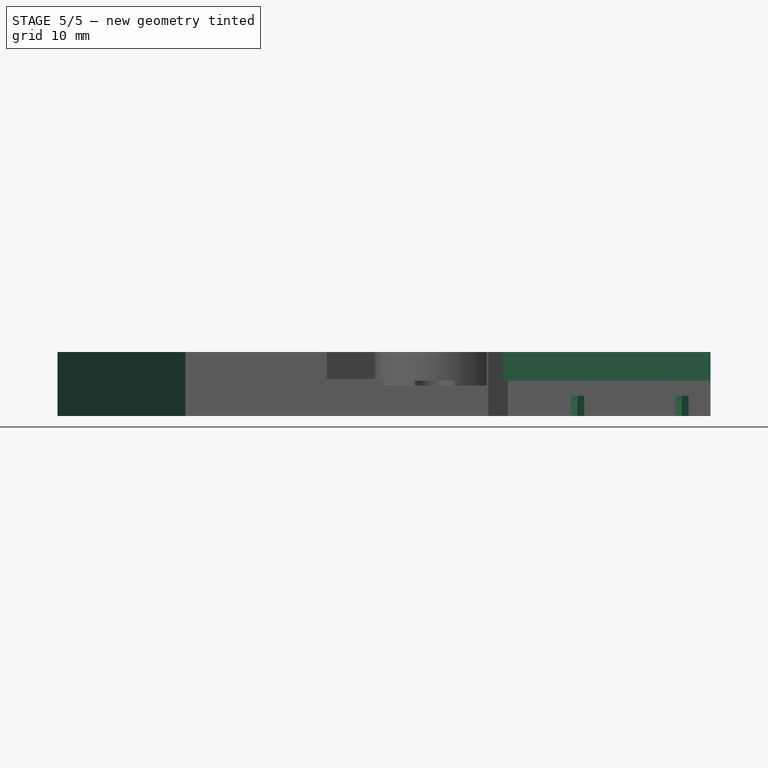
[diagram: stage 5 of 5 — front view after this stage's code; geometry added in this stage tinted green]
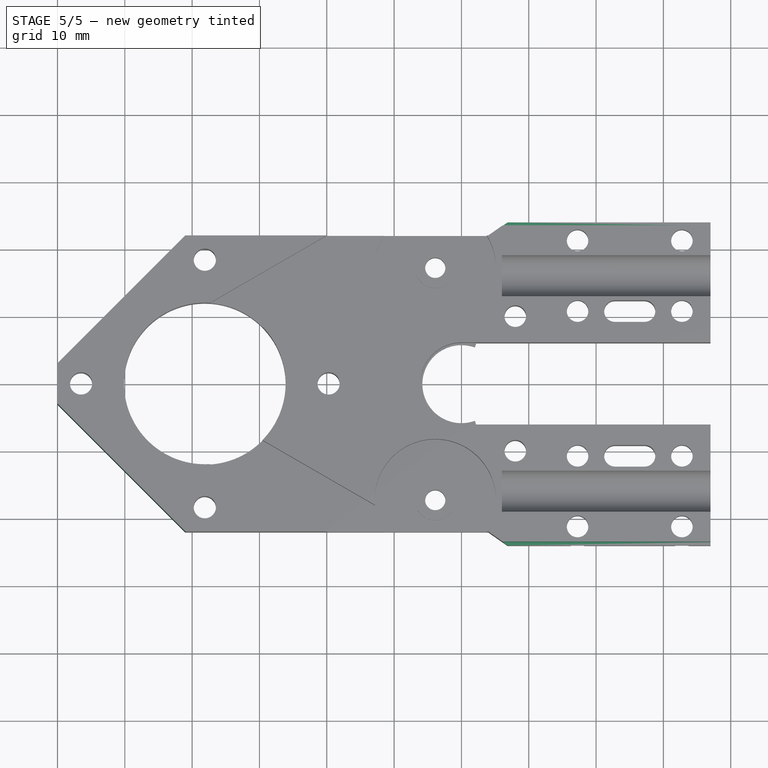
[diagram: stage 5 of 5 — top view after this stage's code; geometry added in this stage tinted green]
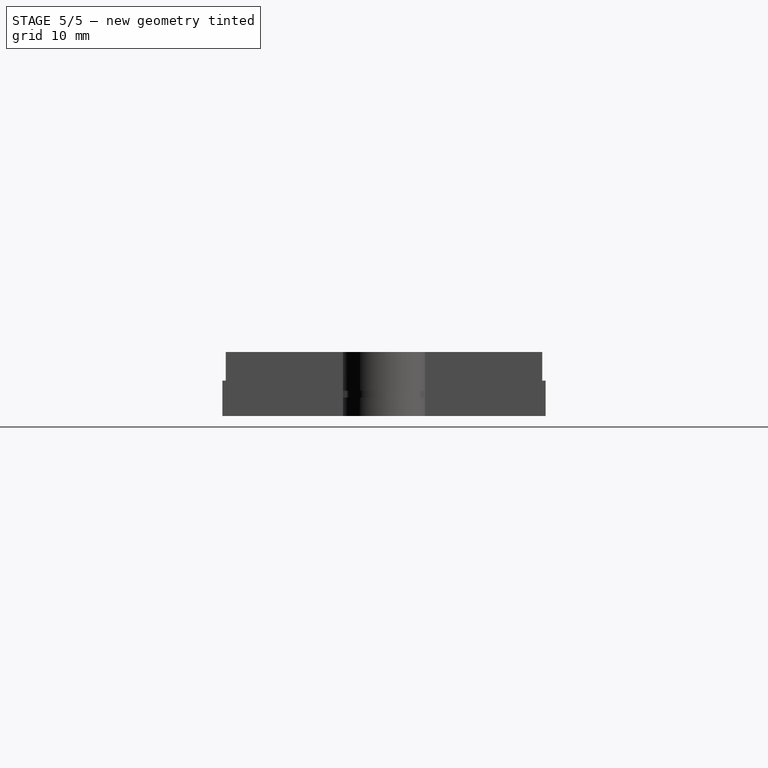
[diagram: stage 5 of 5 — right view after this stage's code; geometry added in this stage tinted green]
FEATURE [PartDesign::Plane] DatumPlane002  label="BottomPlane"
  AttachmentOffset = pos=(0,0,-9.5) rot=(0,0,1;0rad)
  Length = 120.723
  MapMode = 5
  Placement = pos=(0,0,-9.5) rot=(0,0,1;0rad)
  ResizeMode = 0
  Support = -> [XY_Plane]
  Width = 57.723
FEATURE [Sketcher::SketchObject] Sketch018  label="ExtraClipNutsSketch"
  ExternalGeometry = -> [Sketch017]
  MapMode = 5
  Placement = pos=(0,0,-9.5) rot=(0,0,1;0rad)
  Support = -> [DatumPlane002]
  sketch-geometry (56):
    g0: LineSegment StartX=77.25 StartY=24.5698 StartZ=0 EndX=74.375 EndY=22.9099 EndZ=0
    g1: LineSegment StartX=74.375 StartY=22.9099 StartZ=0 EndX=74.375 EndY=19.5901 EndZ=0
    g2: LineSegment StartX=74.375 StartY=19.5901 StartZ=0 EndX=77.25 EndY=17.9302 EndZ=0
    g3: LineSegment StartX=77.25 StartY=17.9302 StartZ=0 EndX=80.125 EndY=19.5901 EndZ=0
    g4: LineSegment StartX=80.125 StartY=19.5901 StartZ=0 EndX=80.125 EndY=22.9099 EndZ=0
    g5: LineSegment StartX=80.125 StartY=22.9099 StartZ=0 EndX=77.25 EndY=24.5698 EndZ=0
    g6: Circle [constr] CenterX=77.25 CenterY=21.25 CenterZ=0 NormalX=0 NormalY=0 NormalZ=1 AngleXU=0 Radius=3.31976
    g7: LineSegment StartX=95.625 StartY=22.9099 StartZ=0 EndX=92.75 EndY=24.5698 EndZ=0
    g8: LineSegment StartX=92.75 StartY=24.5698 StartZ=0 EndX=89.875 EndY=22.9099 EndZ=0
    g9: LineSegment StartX=89.875 StartY=22.9099 StartZ=0 EndX=89.875 EndY=19.5901 EndZ=0
    g10: LineSegment StartX=89.875 StartY=19.5901 StartZ=0 EndX=92.75 EndY=17.9302 EndZ=0
    g11: LineSegment StartX=92.75 StartY=17.9302 StartZ=0 EndX=95.625 EndY=19.5901 EndZ=0
    g12: LineSegment StartX=95.625 StartY=19.5901 StartZ=0 EndX=95.625 EndY=22.9099 EndZ=0
    g13: Circle [constr] CenterX=92.75 CenterY=21.25 CenterZ=0 NormalX=0 NormalY=0 NormalZ=1 AngleXU=0 Radius=3.31976
    g14: LineSegment StartX=95.625 StartY=9.09012 StartZ=0 EndX=95.625 EndY=12.4099 EndZ=0
    g15: LineSegment StartX=95.625 StartY=12.4099 StartZ=0 EndX=92.75 EndY=14.0698 EndZ=0
    g16: LineSegment StartX=92.75 StartY=14.0698 StartZ=0 EndX=89.875 EndY=12.4099 EndZ=0
    g17: LineSegment StartX=89.875 StartY=12.4099 StartZ=0 EndX=89.875 EndY=9.09012 EndZ=0
    g18: LineSegment StartX=89.875 StartY=9.09012 StartZ=0 EndX=92.75 EndY=7.43024 EndZ=0
    g19: LineSegment StartX=92.75 StartY=7.43024 StartZ=0 EndX=95.625 EndY=9.09012 EndZ=0
    g20: Circle [constr] CenterX=92.75 CenterY=10.75 CenterZ=0 NormalX=0 NormalY=0 NormalZ=1 AngleXU=0 Radius=3.31976
    g21: LineSegment StartX=80.125 StartY=9.09012 StartZ=0 EndX=80.125 EndY=12.4099 EndZ=0
    g22: LineSegment StartX=80.125 StartY=12.4099 StartZ=0 EndX=77.25 EndY=14.0698 EndZ=0
    g23: LineSegment StartX=77.25 StartY=14.0698 StartZ=0 EndX=74.375 EndY=12.4099 EndZ=0
    g24: LineSegment StartX=74.375 StartY=12.4099 StartZ=0 EndX=74.375 EndY=9.09012 EndZ=0
    g25: LineSegment StartX=74.375 StartY=9.09012 StartZ=0 EndX=77.25 EndY=7.43024 EndZ=0
    g26: LineSegment StartX=77.25 StartY=7.43024 StartZ=0 EndX=80.125 EndY=9.09012 EndZ=0
    g27: Circle [constr] CenterX=77.25 CenterY=10.75 CenterZ=0 NormalX=0 NormalY=0 NormalZ=1 AngleXU=0 Radius=3.31976
    g28: LineSegment StartX=80.125 StartY=-12.4099 StartZ=0 EndX=80.125 EndY=-9.09012 EndZ=0
    g29: LineSegment StartX=80.125 StartY=-9.09012 StartZ=0 EndX=77.25 EndY=-7.43024 EndZ=0
    g30: LineSegment StartX=77.25 StartY=-7.43024 StartZ=0 EndX=74.375 EndY=-9.09012 EndZ=0
    g31: LineSegment StartX=74.375 StartY=-9.09012 StartZ=0 EndX=74.375 EndY=-12.4099 EndZ=0
    g32: LineSegment StartX=74.375 StartY=-12.4099 StartZ=0 EndX=77.25 EndY=-14.0698 EndZ=0
    g33: LineSegment StartX=77.25 StartY=-14.0698 StartZ=0 EndX=80.125 EndY=-12.4099 EndZ=0
    g34: Circle [constr] CenterX=77.25 CenterY=-10.75 CenterZ=0 NormalX=0 NormalY=0 NormalZ=1 AngleXU=0 Radius=3.31976
    g35: LineSegment StartX=92.75 StartY=-14.0698 StartZ=0 EndX=95.625 EndY=-12.4099 EndZ=0
    g36: LineSegment StartX=95.625 StartY=-12.4099 StartZ=0 EndX=95.625 EndY=-9.09012 EndZ=0
    g37: LineSegment StartX=95.625 StartY=-9.09012 StartZ=0 EndX=92.75 EndY=-7.43024 EndZ=0
    g38: LineSegment StartX=92.75 StartY=-7.43024 StartZ=0 EndX=89.875 EndY=-9.09012 EndZ=0
    g39: LineSegment StartX=89.875 StartY=-9.09012 StartZ=0 EndX=89.875 EndY=-12.4099 EndZ=0
    g40: LineSegment StartX=89.875 StartY=-12.4099 StartZ=0 EndX=92.75 EndY=-14.0698 EndZ=0
    g41: Circle [constr] CenterX=92.75 CenterY=-10.75 CenterZ=0 NormalX=0 NormalY=0 NormalZ=1 AngleXU=0 Radius=3.31976
    g42: LineSegment StartX=95.625 StartY=-22.9099 StartZ=0 EndX=95.625 EndY=-19.5901 EndZ=0
    g43: LineSegment StartX=95.625 StartY=-19.5901 StartZ=0 EndX=92.75 EndY=-17.9302 EndZ=0
    g44: LineSegment StartX=92.75 StartY=-17.9302 StartZ=0 EndX=89.875 EndY=-19.5901 EndZ=0
    g45: LineSegment StartX=89.875 StartY=-19.5901 StartZ=0 EndX=89.875 EndY=-22.9099 EndZ=0
    g46: LineSegment StartX=89.875 StartY=-22.9099 StartZ=0 EndX=92.75 EndY=-24.5698 EndZ=0
    g47: LineSegment StartX=92.75 StartY=-24.5698 StartZ=0 EndX=95.625 EndY=-22.9099 EndZ=0
    g48: Circle [constr] CenterX=92.75 CenterY=-21.25 CenterZ=0 NormalX=0 NormalY=0 NormalZ=1 AngleXU=0 Radius=3.31976
    g49: LineSegment StartX=80.125 StartY=-19.5901 StartZ=0 EndX=77.25 EndY=-17.9302 EndZ=0
    g50: LineSegment StartX=77.25 StartY=-17.9302 StartZ=0 EndX=74.375 EndY=-19.5901 EndZ=0
    g51: LineSegment StartX=74.375 StartY=-19.5901 StartZ=0 EndX=74.375 EndY=-22.9099 EndZ=0
    g52: LineSegment StartX=74.375 StartY=-22.9099 StartZ=0 EndX=77.25 EndY=-24.5698 EndZ=0
    g53: LineSegment StartX=77.25 StartY=-24.5698 StartZ=0 EndX=80.125 EndY=-22.9099 EndZ=0
    g54: LineSegment StartX=80.125 StartY=-22.9099 StartZ=0 EndX=80.125 EndY=-19.5901 EndZ=0
    g55: Circle [constr] CenterX=77.25 CenterY=-21.25 CenterZ=0 NormalX=0 NormalY=0 NormalZ=1 AngleXU=0 Radius=3.31976
  constraints (128):
    c: Coincident(g0,g1)
    c: Coincident(g1,g2)
    c: Coincident(g2,g3)
    c: Coincident(g3,g4)
    c: Coincident(g4,g5)
    c: Coincident(g5,g0)
    c: Equal(g0, g1-g5) x5
    c: PointOnObject(g0,g6)
    c: PointOnObject(g1,g6)
    c: PointOnObject(g2,g6)
    c: PointOnObject(g3,g6)
    c: PointOnObject(g4,g6)
    c: PointOnObject(g5,g6)
    c: Coincident(g6,g-3)
    c: Coincident(g7,g8)
    c: Coincident(g8,g9)
    c: Coincident(g9,g10)
    c: Coincident(g10,g11)
    c: Coincident(g11,g12)
    c: Coincident(g12,g7)
    c: Equal(g7, g8-g12) x5
    c: PointOnObject(g7,g13)
    c: PointOnObject(g8,g13)
    c: PointOnObject(g9,g13)
    c: PointOnObject(g10,g13)
    c: PointOnObject(g11,g13)
    c: PointOnObject(g12,g13)
    c: Coincident(g13,g-4)
    c: Coincident(g14,g15)
    c: Coincident(g15,g16)
    c: Coincident(g16,g17)
    c: Coincident(g17,g18)
    c: Coincident(g18,g19)
    c: Coincident(g19,g14)
    c: Equal(g14, g15-g19) x5
    c: PointOnObject(g14,g20)
    c: PointOnObject(g15,g20)
    c: PointOnObject(g16,g20)
    c: PointOnObject(g17,g20)
    c: PointOnObject(g18,g20)
    c: PointOnObject(g19,g20)
    c: Coincident(g20,g-5)
    c: Coincident(g21,g22)
    c: Coincident(g22,g23)
    c: Coincident(g23,g24)
    c: Coincident(g24,g25)
    c: Coincident(g25,g26)
    c: Coincident(g26,g21)
    c: Equal(g21, g22-g26) x5
    c: PointOnObject(g21,g27)
    c: PointOnObject(g22,g27)
    c: PointOnObject(g23,g27)
    c: PointOnObject(g24,g27)
    c: PointOnObject(g25,g27)
    c: PointOnObject(g26,g27)
    c: Coincident(g27,g-6)
    c: Coincident(g28,g29)
    c: Coincident(g29,g30)
    c: Coincident(g30,g31)
    c: Coincident(g31,g32)
    c: Coincident(g32,g33)
    c: Coincident(g33,g28)
    c: Equal(g28, g29-g33) x5
    c: PointOnObject(g28,g34)
    c: PointOnObject(g29,g34)
    c: PointOnObject(g30,g34)
    c: PointOnObject(g31,g34)
    c: PointOnObject(g32,g34)
    c: PointOnObject(g33,g34)
    c: Coincident(g34,g-7)
    c: Coincident(g35,g36)
    c: Coincident(g36,g37)
    c: Coincident(g37,g38)
    c: Coincident(g38,g39)
    c: Coincident(g39,g40)
    c: Coincident(g40,g35)
    c: Equal(g35, g36-g40) x5
    c: PointOnObject(g35,g41)
    c: PointOnObject(g36,g41)
    c: PointOnObject(g37,g41)
    c: PointOnObject(g38,g41)
    c: PointOnObject(g39,g41)
    c: PointOnObject(g40,g41)
    c: Coincident(g41,g-8)
    c: Coincident(g42,g43)
    c: Coincident(g43,g44)
    c: Coincident(g44,g45)
    c: Coincident(g45,g46)
    c: Coincident(g46,g47)
    c: Coincident(g47,g42)
    c: Equal(g42, g43-g47) x5
    c: PointOnObject(g42,g48)
    c: PointOnObject(g43,g48)
    c: PointOnObject(g44,g48)
    c: PointOnObject(g45,g48)
    c: PointOnObject(g46,g48)
    c: PointOnObject(g47,g48)
    c: Coincident(g48,g-9)
    c: Coincident(g49,g50)
    c: Coincident(g50,g51)
    c: Coincident(g51,g52)
    c: Coincident(g52,g53)
    c: Coincident(g53,g54)
    c: Coincident(g54,g49)
    c: Equal(g49, g50-g54) x5
    c: PointOnObject(g49,g55)
    c: PointOnObject(g50,g55)
    c: PointOnObject(g51,g55)
    c: PointOnObject(g52,g55)
    c: PointOnObject(g53,g55)
    c: PointOnObject(g54,g55)
    c: Coincident(g55,g-10)
    c: Equal(g0,g7)
    c: Equal(g7,g14)
    c: Equal(g14,g21)
    c: Equal(g21,g28)
    c: Equal(g28,g35)
    c: Equal(g35,g49)
    c: Equal(g49,g42)
    c: Distance(g30,g28) = 5.75
    c: Vertical(g4)
    c: Vertical(g12)
    c: Vertical(g14)
    c: Vertical(g21)
    c: Vertical(g28)
    c: Vertical(g36)
    c: Vertical(g42)
    c: Vertical(g54)
FEATURE [PartDesign::Pocket] Pocket014  label="ExtraClipNutsPocket"
  BaseFeature = -> Pocket013
  Length = 3
  Length2 = 100
  Placement = pos=(0,0,0) rot=(0.57735,0.57735,0.57735;2.0944rad)
  Profile = -> Sketch018
  Reversed = true
  Type = 0
FEATURE [PartDesign::Chamfer] Chamfer  label="RearChamfer"
  Base = -> Pocket014 [Edge15,Edge1]
  BaseFeature = -> Pocket014
  Placement = pos=(0,0,0) rot=(0.57735,0.57735,0.57735;2.0944rad)
  Size = 19
FEATURE [Sketcher::SketchObject] Sketch027  label="ExtraBeltCut"
  ExternalGeometry = -> [Sketch016]
  MapMode = 5
  Support = -> [XY_Plane]
  sketch-geometry (8):
    g0: LineSegment StartX=97 StartY=-24 StartZ=0 EndX=47 EndY=-24 EndZ=0
    g1: LineSegment StartX=47 StartY=-24 StartZ=0 EndX=47 EndY=-23.5 EndZ=0
    g2: LineSegment StartX=47 StartY=-23.5 StartZ=0 EndX=97 EndY=-23.5 EndZ=0
    g3: LineSegment StartX=97 StartY=-23.5 StartZ=0 EndX=97 EndY=-24 EndZ=0
    g4: LineSegment StartX=47 StartY=23.5 StartZ=0 EndX=97 EndY=23.5 EndZ=0
    g5: LineSegment StartX=97 StartY=23.5 StartZ=0 EndX=97 EndY=24 EndZ=0
    g6: LineSegment StartX=97 StartY=24 StartZ=0 EndX=47 EndY=24 EndZ=0
    g7: LineSegment StartX=47 StartY=24 StartZ=0 EndX=47 EndY=23.5 EndZ=0
  constraints (21):
    c: Coincident(g0,g-3)
    c: Horizontal(g0)
    c: Coincident(g1,g0)
    c: Vertical(g1)
    c: Coincident(g2,g1)
    c: Coincident(g3,g2)
    c: Coincident(g3,g0)
    c: Vertical(g3)
    c: Horizontal(g2)
    c: Distance(g2) = 50
    c: Coincident(g4,g5)
    c: Coincident(g5,g6)
    c: Coincident(g6,g7)
    c: Coincident(g7,g4)
    c: Horizontal(g4)
    c: Horizontal(g6)
    c: Vertical(g7)
    c: Equal(g2,g6)
    c: Symmetric(g0,g5,g-1)
    c: Symmetric(g4,g2,g-1)
    c: Distance(g1) = 0.5
FEATURE [PartDesign::Pocket] Pocket016  label="ExtraBeltPocket"
  BaseFeature = -> Chamfer
  Length = 8.5
  Length2 = 100
  Midplane = true
  Placement = pos=(0,0,0) rot=(0.57735,0.57735,0.57735;2.0944rad)
  Profile = -> Sketch027
  Type = 0
FEATURE [PartDesign::Body] Body  label="LeftXEndBase"
  Group = -> [Sketch,Pad,Sketch001,Pocket,Sketch002,Pocket001,Sketch005,Pocket002,Sketch006,Pocket003,Sketch007,Pocket004,Sketch008,Pocket005,Sketch009,Pocket006,Sketch010,Pocket007,Sketch011,Pocket008,Sketch012,Pocket009,DatumPlane,Sketch013,Pocket010,DatumPlane001,Sketch014,Pocket011,Sketch015,Pocket012,Sketch016,Pad001,Sketch017,Pocket013,DatumPlane002,Sketch018,Pocket014,Chamfer,Pocket016,Sketch027]
  Origin = -> Origin
  Tip = -> Pocket016
FEATURE [App::Part] Part001  label="LeftXEndPart"
  Group = -> [Body]
  License = CC BY 3.0
  LicenseURL = http://creativecommons.org/licenses/by/3.0/
  Origin = -> Origin003
FEATURE [Part::FeaturePython] refine  label="LeftXEndBase_Refined"  # WARN: FeaturePython — macro-defined, semantics opaque (R4)
  Base = -> Body
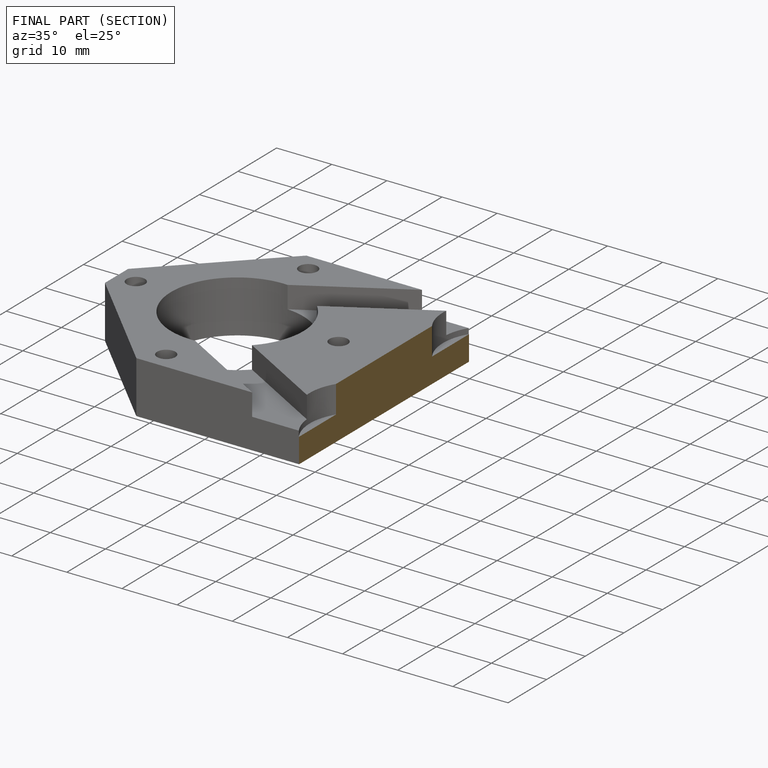
[diagram: finished part — half-section view (interior)]
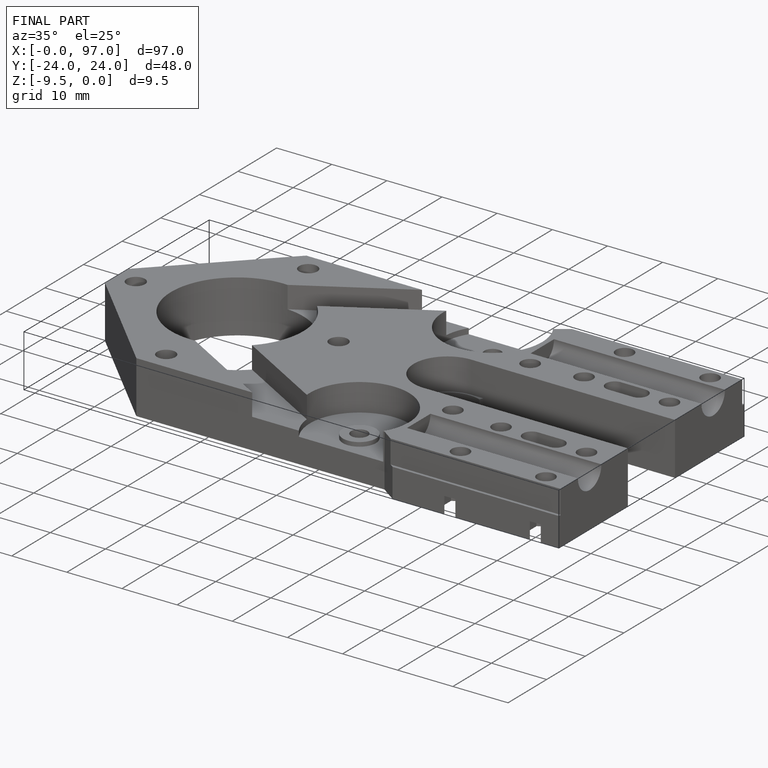
[diagram: finished part — iso view with bounding-box wireframe]
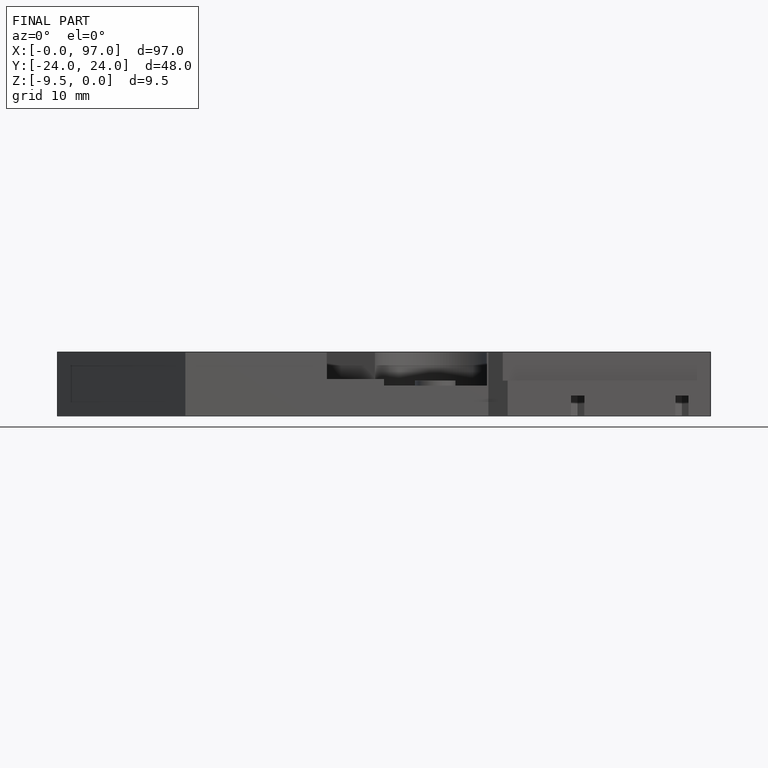
[diagram: finished part — front view with bounding-box wireframe]
